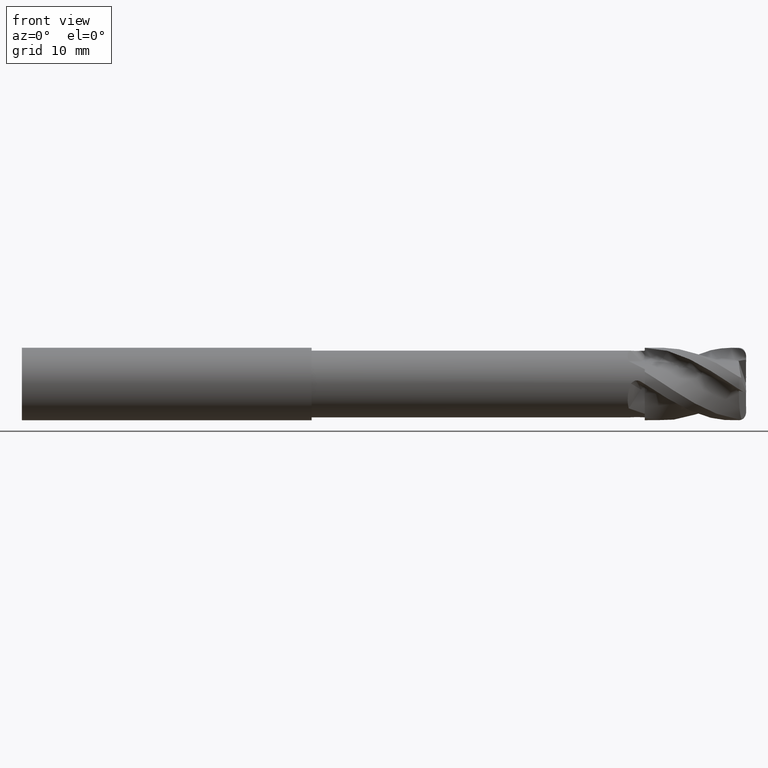
[diagram: clean part render]
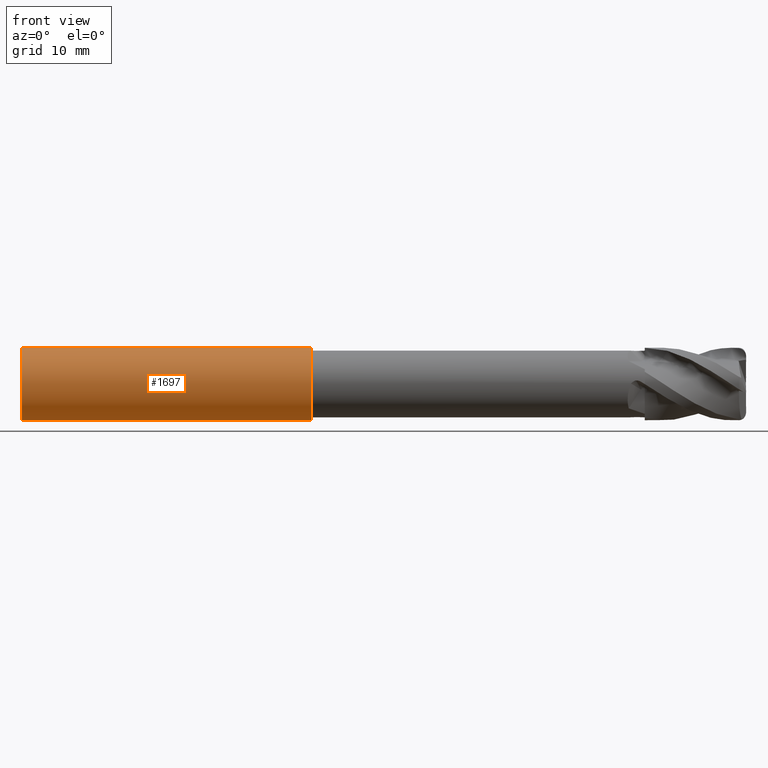
[diagram: same view with one face highlighted and labeled with its STEP entity id]
A machine part, front view. The second image highlights one B-rep face of the part: STEP entity #1697.
In plain terms, the highlighted cylindrical surface (edge-blend (fillet) strip) has radius 5 mm, axis along (-1, -0, -0).
Its self-contained STEP definition (entity closure, byte-faithful):
#167 = AXIS2_PLACEMENT_3D ( 'NONE', #5345, #5346, #5347 ) ;
#170 = EDGE_CURVE ( 'NONE', #2594, #1754, #4822, .T. ) ;
#175 = AXIS2_PLACEMENT_3D ( 'NONE', #5480, #5481, #5482 ) ;
#184 = AXIS2_PLACEMENT_3D ( 'NONE', #4522, #4521, #4170 ) ;
#406 = CIRCLE ( 'NONE', #175, 5.000000000000004400 ) ;
#662 = LINE ( 'NONE', #5460, #1714 ) ;
#811 = EDGE_LOOP ( 'NONE', ( #5645, #5646, #5611, #5612 ) ) ;
#1697 = ADVANCED_FACE ( 'NONE', ( #2803 ), #2802, .T. ) ;
#1714 = VECTOR ( 'NONE', #5461, 1000.000000000000000 ) ;
#1751 = VERTEX_POINT ( 'NONE', #5259 ) ;
#1754 = VERTEX_POINT ( 'NONE', #5262 ) ;
#2594 = VERTEX_POINT ( 'NONE', #5313 ) ;
#2603 = VERTEX_POINT ( 'NONE', #5318 ) ;
#2793 = CIRCLE ( 'NONE', #167, 5.000000000000009800 ) ;
#2802 = CYLINDRICAL_SURFACE ( 'NONE', #184, 5.000000000000007100 ) ;
#2803 = FACE_OUTER_BOUND ( 'NONE', #811, .T. ) ;
#2863 = DIRECTION ( 'NONE',  ( -1.000000000000000000, -0.0000000000000000000, -0.0000000000000000000 ) ) ;
#2864 = CARTESIAN_POINT ( 'NONE',  ( -39.76065438357068200, 0.0000000000000000000, 5.000000000000007100 ) ) ;
#4170 = DIRECTION ( 'NONE',  ( 0.0000000000000000000, 0.0000000000000000000, 1.000000000000000000 ) ) ;
#4521 = DIRECTION ( 'NONE',  ( -1.000000000000000000, -0.0000000000000000000, -0.0000000000000000000 ) ) ;
#4522 = CARTESIAN_POINT ( 'NONE',  ( -39.76065438357068200, 0.0000000000000000000, 0.0000000000000000000 ) ) ;
#4804 = VECTOR ( 'NONE', #2863, 1000.000000000000000 ) ;
#4822 = LINE ( 'NONE', #2864, #4804 ) ;
#5259 = CARTESIAN_POINT ( 'NONE',  ( -40.00000000000000000, 6.123233995736773200E-016, -5.000000000000004400 ) ) ;
#5262 = CARTESIAN_POINT ( 'NONE',  ( -40.00000000000000000, 0.0000000000000000000, 5.000000000000004400 ) ) ;
#5313 = CARTESIAN_POINT ( 'NONE',  ( 0.0000000000000000000, 0.0000000000000000000, 5.000000000000009800 ) ) ;
#5318 = CARTESIAN_POINT ( 'NONE',  ( 0.0000000000000000000, 6.123233995736777100E-016, -5.000000000000009800 ) ) ;
#5345 = CARTESIAN_POINT ( 'NONE',  ( 0.0000000000000000000, 0.0000000000000000000, 0.0000000000000000000 ) ) ;
#5346 = DIRECTION ( 'NONE',  ( -1.000000000000000000, -0.0000000000000000000, -0.0000000000000000000 ) ) ;
#5347 = DIRECTION ( 'NONE',  ( 0.0000000000000000000, 0.0000000000000000000, 1.000000000000000000 ) ) ;
#5460 = CARTESIAN_POINT ( 'NONE',  ( -39.76065438357068200, 6.123233995736774200E-016, -5.000000000000007100 ) ) ;
#5461 = DIRECTION ( 'NONE',  ( -1.000000000000000000, -0.0000000000000000000, -0.0000000000000000000 ) ) ;
#5480 = CARTESIAN_POINT ( 'NONE',  ( -40.00000000000000000, 0.0000000000000000000, 0.0000000000000000000 ) ) ;
#5481 = DIRECTION ( 'NONE',  ( -1.000000000000000000, -0.0000000000000000000, -0.0000000000000000000 ) ) ;
#5482 = DIRECTION ( 'NONE',  ( 0.0000000000000000000, 0.0000000000000000000, 1.000000000000000000 ) ) ;
#5611 = ORIENTED_EDGE ( 'NONE', *, *, #170, .T. ) ;
#5612 = ORIENTED_EDGE ( 'NONE', *, *, #5696, .F. ) ;
#5645 = ORIENTED_EDGE ( 'NONE', *, *, #5694, .F. ) ;
#5646 = ORIENTED_EDGE ( 'NONE', *, *, #5676, .T. ) ;
#5676 = EDGE_CURVE ( 'NONE', #2603, #2594, #2793, .T. ) ;
#5694 = EDGE_CURVE ( 'NONE', #2603, #1751, #662, .T. ) ;
#5696 = EDGE_CURVE ( 'NONE', #1751, #1754, #406, .T. ) ;